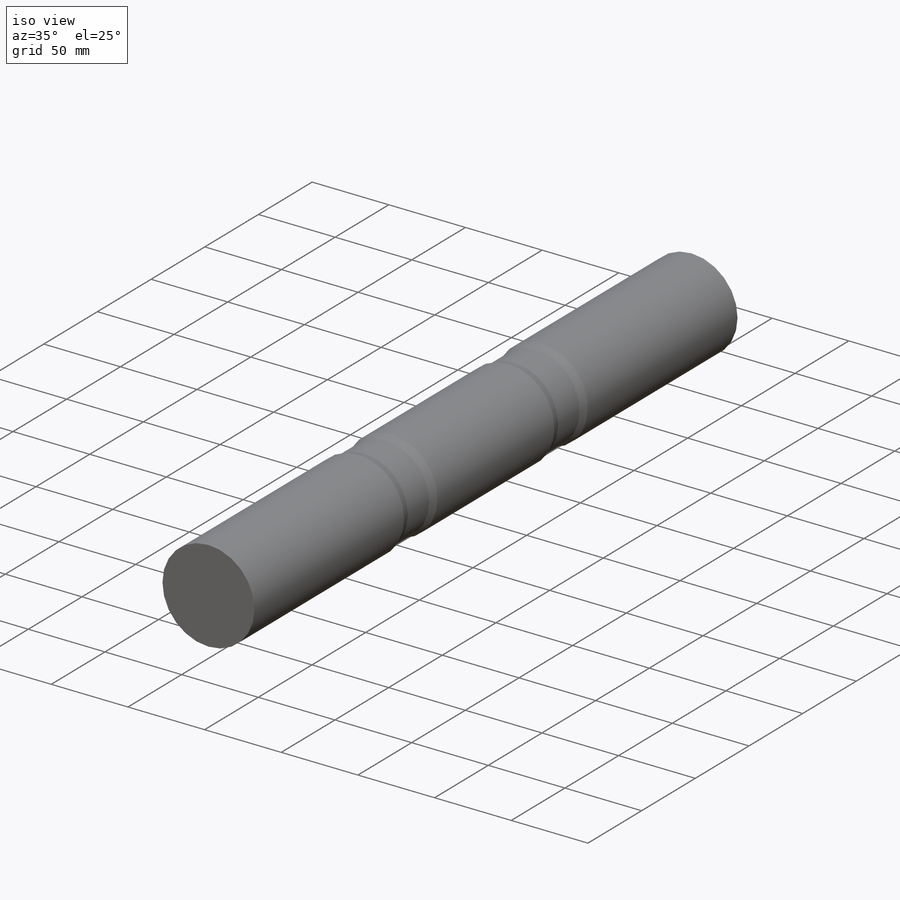
[diagram: iso view]
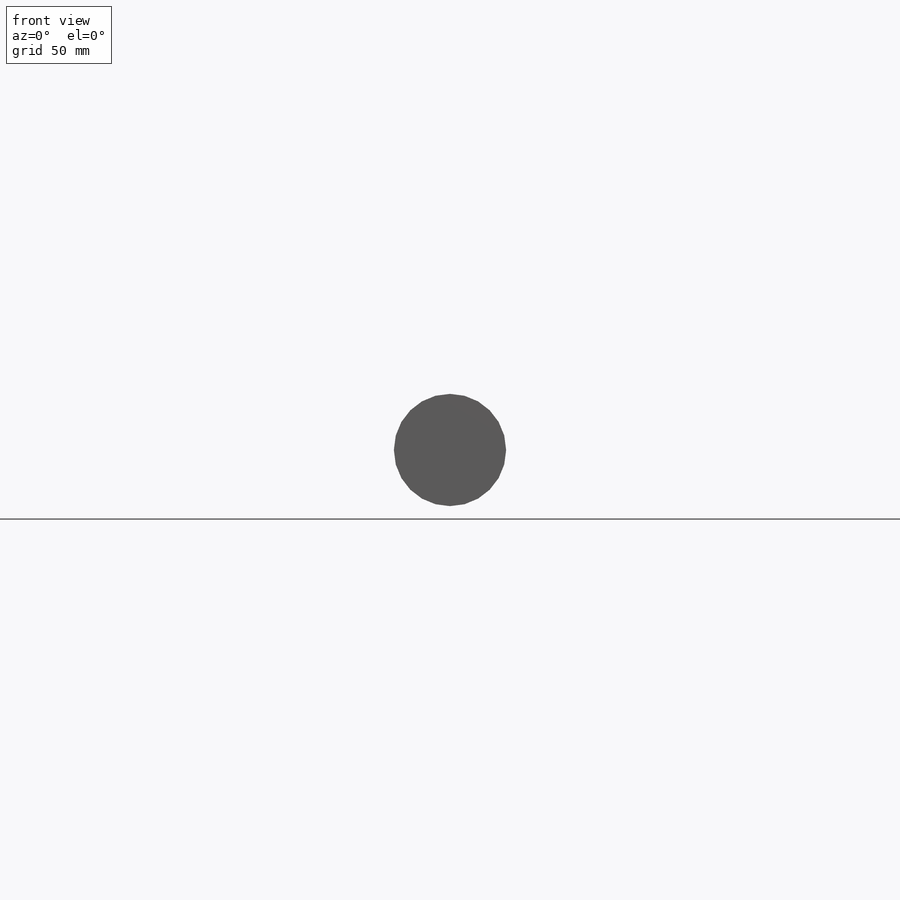
[diagram: front view]
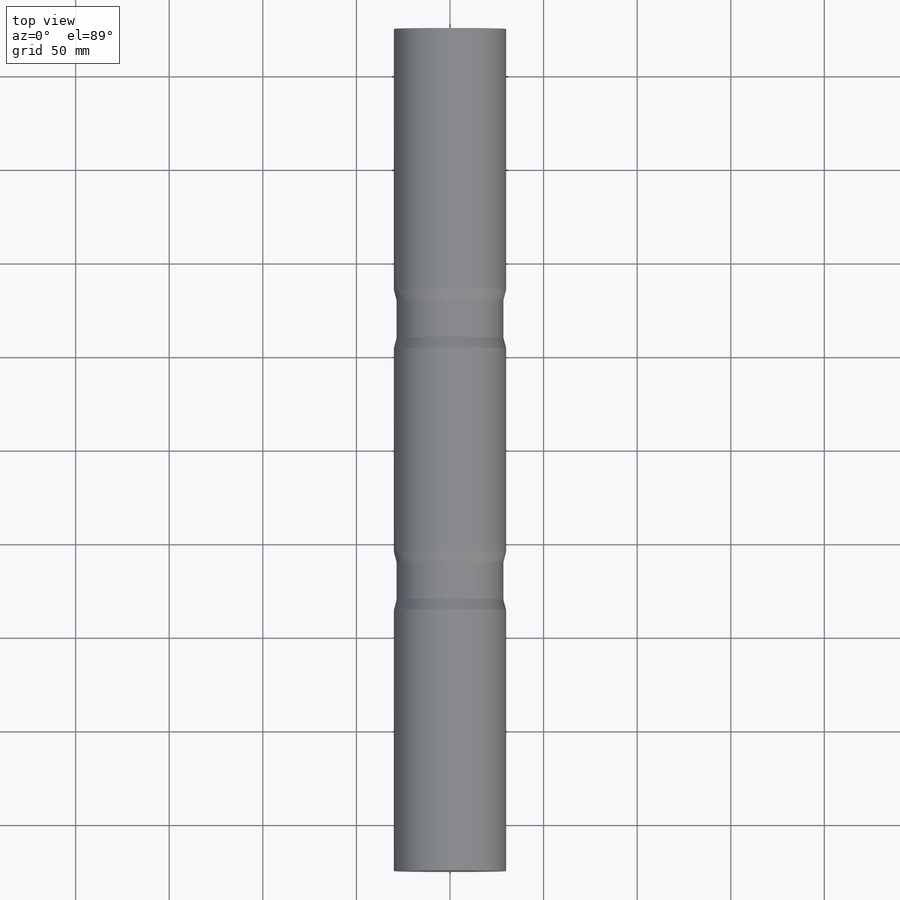
[diagram: top view]
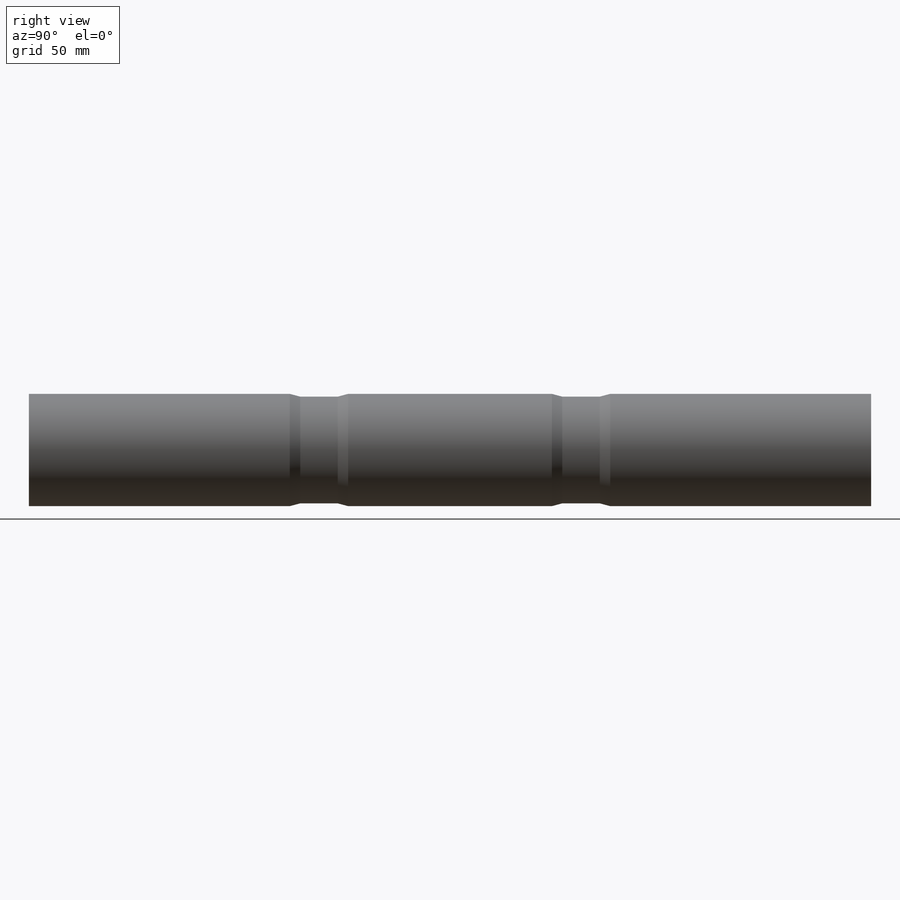
[diagram: right view]
SOLIDWORKS PART (.sldprt)
format: sldprt  version: not decoded by parser v0  size: 185,344 bytes
history: native  units: mm
features: sketch x3, material x1, extrude x1, cut_extrude x1, cut_revolve x1 (+12 scaffold rows collapsed)
feature tree (19):
  scaffold x12  (default folders/planes/origin — collapsed)
  material  "Plain Carbon Steel"
  sketch  "Sketch1"  dims[D1=60.0mm]
  extrude  "Boss-Extrude1"  Depth=450mm
  sketch  "Sketch2"  dims[D1=14.0mm D2=72.0mm]
  cut_extrude  "Cut-Extrude1"  [1 undecoded]
  sketch  "Sketch3"  dims[c1.D1=1.5mm c1.D2=20.0mm c1.D3=1.5mm c2.D3=165.0deg c2.D4=20.0mm c3.D4=165.0deg c3.D5=~71.511552mm c3.D6=90.0mm c3.D7=~18.488448mm c4.D5=20.0mm c4.D7=30.0mm]
  cut_revolve  "Cut-Revolve1"  Angle=360deg
decode coverage: 5 of 6 modeling features carry decoded parameters
note: ~ marks probable driven/reference dimensions
note: 1 parameter value undecoded
note: suppression state not decoded; provenance and decode notes live in map.json
